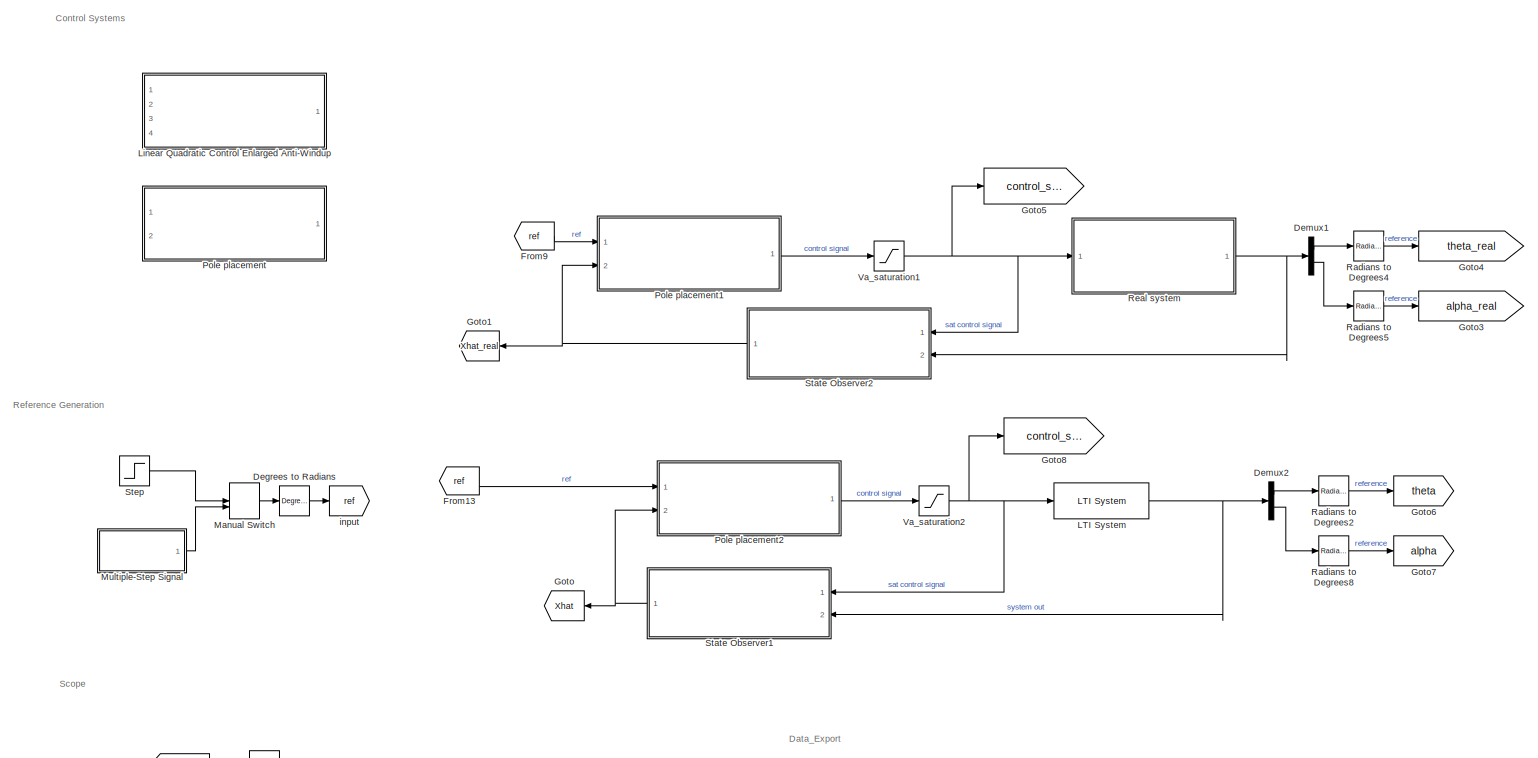
[diagram: root canvas - part 1/2, full width, middle band]
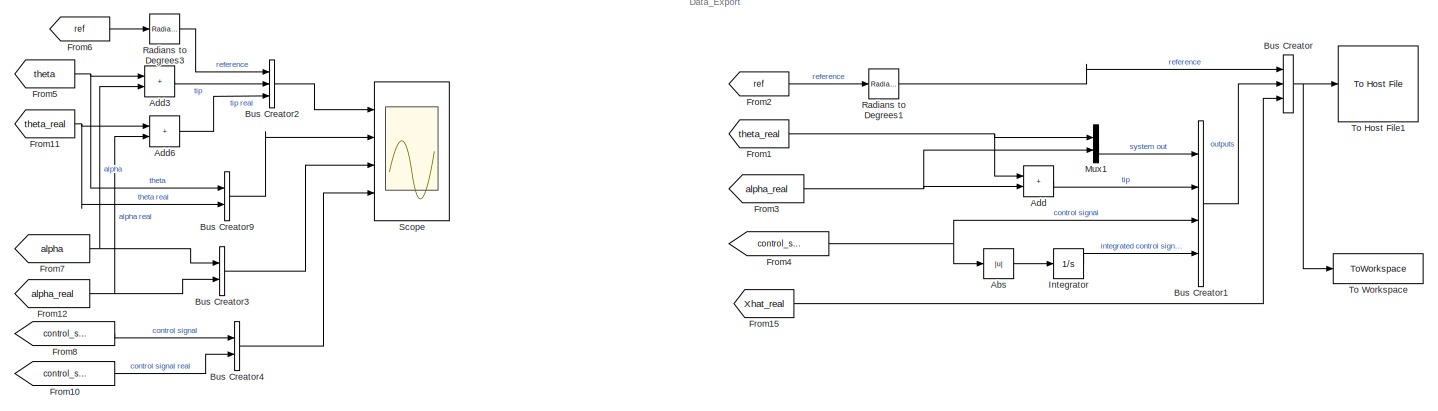
[diagram: root canvas - part 2/2, full width, bottom band]
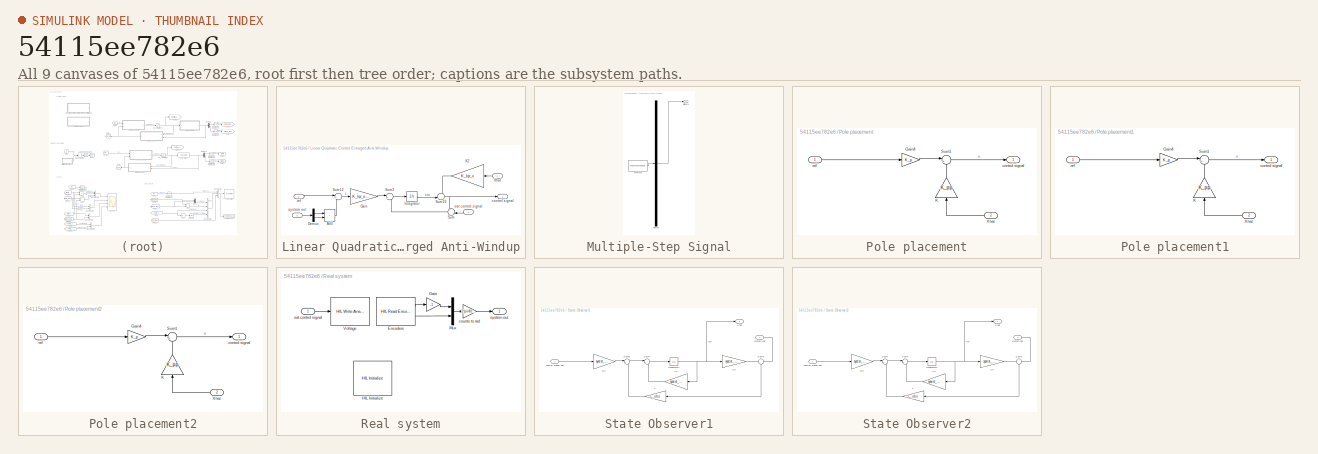
[diagram: thumbnail index - all 9 canvases of the model, root first then tree order]
MODEL slx_54115ee782e6
KIND model
CONFIG AbsTol = auto
CONFIG EnableMultiTasking = on
CONFIG FixedStep = 0.002
CONFIG MaxStep = auto
CONFIG MinStep = auto
CONFIG PostLoadFcn = qc_set_target_type(getConfigSet(bdroot, 'QUARC Default Target Configuration'));
CONFIG RelTol = 1e-3
CONFIG SampleTimeConstraint = Unconstrained
CONFIG Solver = FixedStepAuto
CONFIG SolverName = FixedStepAuto
CONFIG StartTime = 0.0
CONFIG StopTime = inf
BLOCK [Abs] Abs
  Commented = on
  SaturateOnIntegerOverflow = off
BLOCK [Sum] Add
  Commented = on
  IconShape = rectangular
  Ports = [2, 1]
BLOCK [Sum] Add3
  IconShape = rectangular
  Ports = [2, 1]
BLOCK [Sum] Add6
  IconShape = rectangular
  Ports = [2, 1]
BLOCK [BusCreator] Bus Creator
  Commented = on
  DisplayOption = bar
  InheritFromInputs = on
  Inputs = 3
  Ports = [3, 1]
BLOCK [BusCreator] Bus Creator1
  Commented = on
  DisplayOption = bar
  InheritFromInputs = on
  Inputs = 4
  Ports = [4, 1]
BLOCK [BusCreator] Bus Creator2
  DisplayOption = bar
  InheritFromInputs = on
  Inputs = 3
  Ports = [3, 1]
BLOCK [BusCreator] Bus Creator3
  DisplayOption = bar
  InheritFromInputs = on
  Inputs = 2
  Ports = [2, 1]
BLOCK [BusCreator] Bus Creator4
  DisplayOption = bar
  InheritFromInputs = on
  Inputs = 2
  Ports = [2, 1]
BLOCK [BusCreator] Bus Creator9
  DisplayOption = bar
  InheritFromInputs = on
  Inputs = 2
  Ports = [2, 1]
BLOCK [Reference] Degrees to Radians  REF=simulink_extras/Transformations/Degrees to
Radians
  Ports = [1, 1]
  SourceBlock = simulink_extras/Transformations/Degrees to\nRadians
  SourceType = DegreesToRadians
BLOCK [Demux] Demux1
  Commented = on
  Outputs = 2
  Ports = [1, 2]
BLOCK [Demux] Demux2
  Outputs = 2
  Ports = [1, 2]
BLOCK [From] From1
  Commented = on
  GotoTag = theta_real
BLOCK [From] From10
  GotoTag = control_signal_real
BLOCK [From] From11
  GotoTag = theta_real
BLOCK [From] From12
  GotoTag = alpha_real
BLOCK [From] From13
  GotoTag = ref
BLOCK [From] From15
  Commented = on
  GotoTag = Xhat_real
BLOCK [From] From2
  Commented = on
  GotoTag = ref
BLOCK [From] From3
  Commented = on
  GotoTag = alpha_real
BLOCK [From] From4
  Commented = on
  GotoTag = control_signal
BLOCK [From] From5
  GotoTag = theta
BLOCK [From] From6
  GotoTag = ref
BLOCK [From] From7
  GotoTag = alpha
BLOCK [From] From8
  GotoTag = control_signal
BLOCK [From] From9
  Commented = on
  GotoTag = ref
BLOCK [Goto] Goto
  GotoTag = Xhat
BLOCK [Goto] Goto1
  Commented = on
  GotoTag = Xhat_real
BLOCK [Goto] Goto3
  Commented = on
  GotoTag = alpha_real
BLOCK [Goto] Goto4
  Commented = on
  GotoTag = theta_real
BLOCK [Goto] Goto5
  Commented = on
  GotoTag = control_signal_real
BLOCK [Goto] Goto6
  GotoTag = theta
BLOCK [Goto] Goto7
  GotoTag = alpha
BLOCK [Goto] Goto8
  GotoTag = control_signal
BLOCK [Integrator] Integrator
  Commented = on
  Ports = [1, 1]
BLOCK [Reference] LTI System  REF=cstblocks/LTI System
  Ports = [1, 1]
  SourceBlock = cstblocks/LTI System
  SourceType = LTI Block
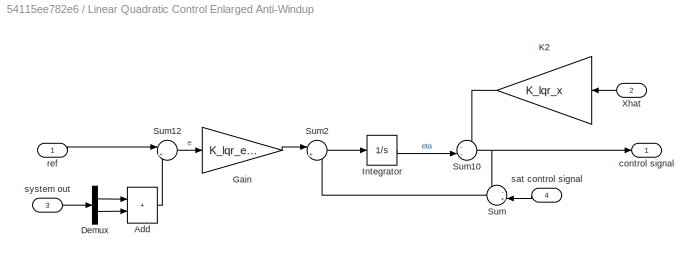
BLOCK [SubSystem] Linear Quadratic Control Enlarged Anti-Windup
  Commented = on
  Ports = [4, 1]
BLOCK [Outport] Linear Quadratic Control Enlarged Anti-Windup/ control signal
BLOCK [Sum] Linear Quadratic Control Enlarged Anti-Windup/Add
  IconShape = rectangular
  Ports = [2, 1]
BLOCK [Demux] Linear Quadratic Control Enlarged Anti-Windup/Demux
  Outputs = 2
  Ports = [1, 2]
BLOCK [Gain] Linear Quadratic Control Enlarged Anti-Windup/Gain
  Gain = K_lqr_eta
BLOCK [Integrator] Linear Quadratic Control Enlarged Anti-Windup/Integrator
  Ports = [1, 1]
BLOCK [Gain] Linear Quadratic Control Enlarged Anti-Windup/K2
  Gain = K_lqr_x
  Multiplication = Matrix(K*u)
BLOCK [Sum] Linear Quadratic Control Enlarged Anti-Windup/Sum
  Inputs = -+|
  Ports = [2, 1]
BLOCK [Sum] Linear Quadratic Control Enlarged Anti-Windup/Sum10
  Inputs = --|
  Ports = [2, 1]
BLOCK [Sum] Linear Quadratic Control Enlarged Anti-Windup/Sum12
  Inputs = |+-
  Ports = [2, 1]
BLOCK [Sum] Linear Quadratic Control Enlarged Anti-Windup/Sum2
  Inputs = |+-
  Ports = [2, 1]
BLOCK [Inport] Linear Quadratic Control Enlarged Anti-Windup/Xhat
  Port = 2
BLOCK [Inport] Linear Quadratic Control Enlarged Anti-Windup/ref
BLOCK [Inport] Linear Quadratic Control Enlarged Anti-Windup/sat  control signal
  Port = 4
BLOCK [Inport] Linear Quadratic Control Enlarged Anti-Windup/system out
  Port = 3
BLOCK [ManualSwitch] Manual Switch
BLOCK [SubSystem] Multiple-Step Signal
  ClipboardFcn = sigbuilder_block('clipboard');
  CloseFcn = sigbuilder_block('close');
  ContinueFcn = sigbuilder_block('continue');
  CopyFcn = sigbuilder_block('copy');
  DeleteFcn = sigbuilder_block('delete');
  LoadFcn = sigbuilder_block('load');
  MaskHideContents = on
  ModelCloseFcn = sigbuilder_block('modelClose');
  NameChangeFcn = sigbuilder_block('namechange');
  OpenFcn = sigbuilder_block('open',[437.6 199.2 550.4 400 ]);
  PauseFcn = sigbuilder_block('pause');
  Ports = [0, 1]
  PreSaveFcn = sigbuilder_block('preSave');
  StartFcn = sigbuilder_block('start');
  StopFcn = sigbuilder_block('stop');
  Tag = STV Subsys
BLOCK [Demux] Multiple-Step Signal/Demux
  DisplayOption = none
  Outputs = 1
  Ports = [1, 1]
  Tag = STV Demux
BLOCK [FromWorkspace] Multiple-Step Signal/FromWs
  Tag = STV FromWs
  VariableName = tuvar
BLOCK [Outport] Multiple-Step Signal/Signal 1
  Tag = STV Outport
BLOCK [Mux] Mux1
  Commented = on
  DisplayOption = bar
  Inputs = 2
  Ports = [2, 1]
BLOCK [SubSystem] Pole placement
  Commented = on
  Ports = [2, 1]
BLOCK [Outport] Pole placement/ control signal
BLOCK [Gain] Pole placement/Gain4
  Gain = K_p
BLOCK [Gain] Pole placement/K
  Gain = K_pp
  Multiplication = Matrix(K*u)
BLOCK [Sum] Pole placement/Sum1
  Inputs = |+-
  Ports = [2, 1]
BLOCK [Inport] Pole placement/Xhat
  Port = 2
BLOCK [Inport] Pole placement/ref
BLOCK [SubSystem] Pole placement1
  Commented = on
  Ports = [2, 1]
BLOCK [Outport] Pole placement1/ control signal
BLOCK [Gain] Pole placement1/Gain4
  Gain = K_p
BLOCK [Gain] Pole placement1/K
  Gain = K_pp
  Multiplication = Matrix(K*u)
BLOCK [Sum] Pole placement1/Sum1
  Inputs = |+-
  Ports = [2, 1]
BLOCK [Inport] Pole placement1/Xhat
  Port = 2
BLOCK [Inport] Pole placement1/ref
BLOCK [SubSystem] Pole placement2
  Ports = [2, 1]
BLOCK [Outport] Pole placement2/ control signal
BLOCK [Gain] Pole placement2/Gain4
  Gain = K_p
BLOCK [Gain] Pole placement2/K
  Gain = K_pp
  Multiplication = Matrix(K*u)
BLOCK [Sum] Pole placement2/Sum1
  Inputs = |+-
  Ports = [2, 1]
BLOCK [Inport] Pole placement2/Xhat
  Port = 2
BLOCK [Inport] Pole placement2/ref
BLOCK [Reference] Radians to Degrees1  REF=simulink_extras/Transformations/Radians
to Degrees
  Commented = on
  Ports = [1, 1]
  SourceBlock = simulink_extras/Transformations/Radians\nto Degrees
  SourceType = RadiansToDegrees
BLOCK [Reference] Radians to Degrees2  REF=simulink_extras/Transformations/Radians
to Degrees
  Ports = [1, 1]
  SourceBlock = simulink_extras/Transformations/Radians\nto Degrees
  SourceType = RadiansToDegrees
BLOCK [Reference] Radians to Degrees3  REF=simulink_extras/Transformations/Radians
to Degrees
  Ports = [1, 1]
  SourceBlock = simulink_extras/Transformations/Radians\nto Degrees
  SourceType = RadiansToDegrees
BLOCK [Reference] Radians to Degrees4  REF=simulink_extras/Transformations/Radians
to Degrees
  Commented = on
  Ports = [1, 1]
  SourceBlock = simulink_extras/Transformations/Radians\nto Degrees
  SourceType = RadiansToDegrees
BLOCK [Reference] Radians to Degrees5  REF=simulink_extras/Transformations/Radians
to Degrees
  Commented = on
  Ports = [1, 1]
  SourceBlock = simulink_extras/Transformations/Radians\nto Degrees
  SourceType = RadiansToDegrees
BLOCK [Reference] Radians to Degrees8  REF=simulink_extras/Transformations/Radians
to Degrees
  Ports = [1, 1]
  SourceBlock = simulink_extras/Transformations/Radians\nto Degrees
  SourceType = RadiansToDegrees
BLOCK [SubSystem] Real system
  Commented = on
  Ports = [1, 1]
BLOCK [Reference] Real system/Encoders  REF=quarc_library/Data Acquisition/Generic/Timebases/HIL Read Encoder
Timebase
  AttributesFormatString = (%<object_name>)
  Ports = [0, 2]
  SourceBlock = quarc_library/Data Acquisition/Generic/Timebases/HIL Read Encoder\nTimebase
  SourceType = HIL Read Encoder Timebase
  UserDataPersistent = on
BLOCK [Gain] Real system/Gain
  Gain = -1
BLOCK [Reference] Real system/HIL Initialize  REF=quarc_library/Data Acquisition/Generic/Configuration/HIL Initialize
  AttributesFormatString = %<object_name> (%<board_type>-%<board_number>)
  Commented = on
  Ports = []
  Priority = -99
  SourceBlock = quarc_library/Data Acquisition/Generic/Configuration/HIL Initialize
  SourceType = HIL Initialize
  UserDataPersistent = on
BLOCK [Mux] Real system/Mux
  DisplayOption = bar
  Inputs = 2
  Ports = [2, 1]
BLOCK [Reference] Real system/Voltage  REF=quarc_library/Data Acquisition/Generic/Immediate I//O/HIL Write Analog
  AttributesFormatString = (%<object_name>)
  Ports = [1]
  SourceBlock = quarc_library/Data Acquisition/Generic/Immediate I//O/HIL Write Analog
  SourceType = HIL Write Analog
  UserDataPersistent = on
BLOCK [Gain] Real system/counts to rad
  Gain = 2*pi/4096
BLOCK [Inport] Real system/sat control signal
BLOCK [Outport] Real system/system out
BLOCK [Scope] Scope
  Floating = off
  NumInputPorts = 4
  Ports = [4]
  ScopeSpecificationString = Simulink.scopes.TimeScopeBlockCfg('CurrentConfiguration', extmgr.ConfigurationSet(extmgr.Configuration('Core','General UI',true,'FigureColor',[1 1 1]),extmgr.Configuration('Core','Source UI',true),extmgr.Configuration('Sources','WiredSimulink',true),extmgr.Configuration('Visuals','Time Domain',true,'SerializedDisplays',{struct('MinYLimReal','-49.16219','MaxYLimReal','57.83647','YLabelReal','','Min...<+4512ch>
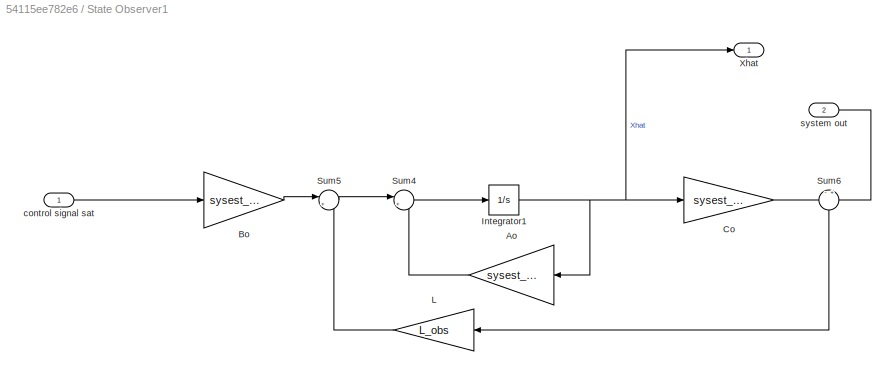
BLOCK [SubSystem] State Observer1
  Ports = [2, 1]
BLOCK [Gain] State Observer1/Ao
  Gain = sysest_ct.A
  Multiplication = Matrix(K*u)
BLOCK [Gain] State Observer1/Bo
  Gain = sysest_ct.B
  Multiplication = Matrix(K*u)
BLOCK [Gain] State Observer1/Co
  Gain = sysest_ct.C
  Multiplication = Matrix(K*u)
BLOCK [Integrator] State Observer1/Integrator1
  Ports = [1, 1]
BLOCK [Gain] State Observer1/L
  Gain = L_obs
  Multiplication = Matrix(K*u)
BLOCK [Sum] State Observer1/Sum4
  Inputs = |++
  Ports = [2, 1]
BLOCK [Sum] State Observer1/Sum5
  Inputs = |++
  Ports = [2, 1]
BLOCK [Sum] State Observer1/Sum6
  Inputs = -+
  Ports = [2, 1]
BLOCK [Outport] State Observer1/Xhat
BLOCK [Inport] State Observer1/control signal sat
BLOCK [Inport] State Observer1/system out
  Port = 2
BLOCK [SubSystem] State Observer2
  Commented = on
  Ports = [2, 1]
BLOCK [Gain] State Observer2/Ao
  Gain = sysest_ct.A
  Multiplication = Matrix(K*u)
BLOCK [Gain] State Observer2/Bo
  Gain = sysest_ct.B
  Multiplication = Matrix(K*u)
BLOCK [Gain] State Observer2/Co
  Gain = sysest_ct.C
  Multiplication = Matrix(K*u)
BLOCK [Integrator] State Observer2/Integrator1
  Ports = [1, 1]
BLOCK [Gain] State Observer2/L
  Gain = L_obs
  Multiplication = Matrix(K*u)
BLOCK [Sum] State Observer2/Sum4
  Inputs = |++
  Ports = [2, 1]
BLOCK [Sum] State Observer2/Sum5
  Inputs = |++
  Ports = [2, 1]
BLOCK [Sum] State Observer2/Sum6
  Inputs = -+
  Ports = [2, 1]
BLOCK [Outport] State Observer2/Xhat
BLOCK [Inport] State Observer2/control signal sat
BLOCK [Inport] State Observer2/system out
  Port = 2
BLOCK [Step] Step
  After = 45
  SampleTime = 0
BLOCK [Reference] To Host File1  REF=quarc_library/Sinks/To Host/To Host File
  AttributesFormatString = %<final_file_name>
  Commented = on
  Ports = [1]
  SourceBlock = quarc_library/Sinks/To Host/To Host File
  SourceType = To Host File
BLOCK [ToWorkspace] To Workspace
  Commented = on
  FixptAsFi = on
  MaxDataPoints = inf
  Ports = [1]
  SampleTime = -1
  SaveFormat = Timeseries
  VariableName = data
BLOCK [Saturate] Va_saturation1
  Commented = on
  LowerLimit = -v_a_max
  UpperLimit = v_a_max
BLOCK [Saturate] Va_saturation2
  LowerLimit = -v_a_max
  UpperLimit = v_a_max
BLOCK [Goto] input
  GotoTag = ref
ANNOTATION (root): Control Systems
ANNOTATION (root): Data_Export
ANNOTATION (root): Reference Generation
ANNOTATION (root): Scope
LINE Abs:1 -> Integrator:1
LINE Add3:1 -> Bus Creator2:2
LINE Add6:1 -> Bus Creator2:3
LINE Add:1 -> Bus Creator1:2
LINE Bus Creator1:1 -> Bus Creator:2
LINE Bus Creator2:1 -> Scope:1
LINE Bus Creator3:1 -> Scope:3
LINE Bus Creator4:1 -> Scope:4
LINE Bus Creator9:1 -> Scope:2
NET Bus Creator:1 -> To Host File1:1, To Workspace:1
LINE Degrees to Radians:1 -> input:1
LINE Demux1:1 -> Radians to Degrees4:1
LINE Demux1:2 -> Radians to Degrees5:1
LINE Demux2:1 -> Radians to Degrees2:1
LINE Demux2:2 -> Radians to Degrees8:1
LINE From10:1 -> Bus Creator4:2
NET From11:1 -> Add6:1, Bus Creator9:2
NET From12:1 -> Add6:2, Bus Creator3:2
LINE From13:1 -> Pole placement2:1
LINE From15:1 -> Bus Creator:3
NET From1:1 -> Add:1, Mux1:1
LINE From2:1 -> Radians to Degrees1:1
NET From3:1 -> Add:2, Mux1:2
NET From4:1 -> Abs:1, Bus Creator1:3
NET From5:1 -> Add3:1, Bus Creator9:1
LINE From6:1 -> Radians to Degrees3:1
NET From7:1 -> Add3:2, Bus Creator3:1
LINE From8:1 -> Bus Creator4:1
LINE From9:1 -> Pole placement1:1
LINE Integrator:1 -> Bus Creator1:4
NET LTI System:1 -> Demux2:1, State Observer1:2
LINE Linear Quadratic Control Enlarged Anti-Windup/Add:1 -> Linear Quadratic Control Enlarged Anti-Windup/Sum12:2
LINE Linear Quadratic Control Enlarged Anti-Windup/Demux:1 -> Linear Quadratic Control Enlarged Anti-Windup/Add:1
LINE Linear Quadratic Control Enlarged Anti-Windup/Demux:2 -> Linear Quadratic Control Enlarged Anti-Windup/Add:2
LINE Linear Quadratic Control Enlarged Anti-Windup/Gain:1 -> Linear Quadratic Control Enlarged Anti-Windup/Sum2:1
LINE Linear Quadratic Control Enlarged Anti-Windup/Integrator:1 -> Linear Quadratic Control Enlarged Anti-Windup/Sum10:2
LINE Linear Quadratic Control Enlarged Anti-Windup/K2:1 -> Linear Quadratic Control Enlarged Anti-Windup/Sum10:1
NET Linear Quadratic Control Enlarged Anti-Windup/Sum10:1 -> Linear Quadratic Control Enlarged Anti-Windup/ control signal:1, Linear Quadratic Control Enlarged Anti-Windup/Sum:1
LINE Linear Quadratic Control Enlarged Anti-Windup/Sum12:1 -> Linear Quadratic Control Enlarged Anti-Windup/Gain:1
LINE Linear Quadratic Control Enlarged Anti-Windup/Sum2:1 -> Linear Quadratic Control Enlarged Anti-Windup/Integrator:1
LINE Linear Quadratic Control Enlarged Anti-Windup/Sum:1 -> Linear Quadratic Control Enlarged Anti-Windup/Sum2:2
LINE Linear Quadratic Control Enlarged Anti-Windup/Xhat:1 -> Linear Quadratic Control Enlarged Anti-Windup/K2:1
LINE Linear Quadratic Control Enlarged Anti-Windup/ref:1 -> Linear Quadratic Control Enlarged Anti-Windup/Sum12:1
LINE Linear Quadratic Control Enlarged Anti-Windup/sat  control signal:1 -> Linear Quadratic Control Enlarged Anti-Windup/Sum:2
LINE Linear Quadratic Control Enlarged Anti-Windup/system out:1 -> Linear Quadratic Control Enlarged Anti-Windup/Demux:1
LINE Manual Switch:1 -> Degrees to Radians:1
LINE Multiple-Step Signal:1 -> Manual Switch:2
LINE Mux1:1 -> Bus Creator1:1
LINE Pole placement/Gain4:1 -> Pole placement/Sum1:1
LINE Pole placement/K:1 -> Pole placement/Sum1:2
LINE Pole placement/Sum1:1 -> Pole placement/ control signal:1
LINE Pole placement/Xhat:1 -> Pole placement/K:1
LINE Pole placement/ref:1 -> Pole placement/Gain4:1
LINE Pole placement1/Gain4:1 -> Pole placement1/Sum1:1
LINE Pole placement1/K:1 -> Pole placement1/Sum1:2
LINE Pole placement1/Sum1:1 -> Pole placement1/ control signal:1
LINE Pole placement1/Xhat:1 -> Pole placement1/K:1
LINE Pole placement1/ref:1 -> Pole placement1/Gain4:1
LINE Pole placement1:1 -> Va_saturation1:1
LINE Pole placement2/Gain4:1 -> Pole placement2/Sum1:1
LINE Pole placement2/K:1 -> Pole placement2/Sum1:2
LINE Pole placement2/Sum1:1 -> Pole placement2/ control signal:1
LINE Pole placement2/Xhat:1 -> Pole placement2/K:1
LINE Pole placement2/ref:1 -> Pole placement2/Gain4:1
LINE Pole placement2:1 -> Va_saturation2:1
LINE Radians to Degrees1:1 -> Bus Creator:1
LINE Radians to Degrees2:1 -> Goto6:1
LINE Radians to Degrees3:1 -> Bus Creator2:1
LINE Radians to Degrees4:1 -> Goto4:1
LINE Radians to Degrees5:1 -> Goto3:1
LINE Radians to Degrees8:1 -> Goto7:1
LINE Real system/Encoders:1 -> Real system/Gain:1
LINE Real system/Encoders:2 -> Real system/Mux:2
LINE Real system/Gain:1 -> Real system/Mux:1
LINE Real system/Mux:1 -> Real system/counts to rad:1
LINE Real system/counts to rad:1 -> Real system/system out:1
LINE Real system/sat control signal:1 -> Real system/Voltage:1
NET Real system:1 -> Demux1:1, State Observer2:2
LINE State Observer1/Ao:1 -> State Observer1/Sum4:2
LINE State Observer1/Bo:1 -> State Observer1/Sum5:1
LINE State Observer1/Co:1 -> State Observer1/Sum6:1
NET State Observer1/Integrator1:1 -> State Observer1/Ao:1, State Observer1/Co:1, State Observer1/Xhat:1
LINE State Observer1/L:1 -> State Observer1/Sum5:2
LINE State Observer1/Sum4:1 -> State Observer1/Integrator1:1
LINE State Observer1/Sum5:1 -> State Observer1/Sum4:1
LINE State Observer1/Sum6:1 -> State Observer1/L:1
LINE State Observer1/control signal sat:1 -> State Observer1/Bo:1
LINE State Observer1/system out:1 -> State Observer1/Sum6:2
NET State Observer1:1 -> Goto:1, Pole placement2:2
LINE State Observer2/Ao:1 -> State Observer2/Sum4:2
LINE State Observer2/Bo:1 -> State Observer2/Sum5:1
LINE State Observer2/Co:1 -> State Observer2/Sum6:1
NET State Observer2/Integrator1:1 -> State Observer2/Ao:1, State Observer2/Co:1, State Observer2/Xhat:1
LINE State Observer2/L:1 -> State Observer2/Sum5:2
LINE State Observer2/Sum4:1 -> State Observer2/Integrator1:1
LINE State Observer2/Sum5:1 -> State Observer2/Sum4:1
LINE State Observer2/Sum6:1 -> State Observer2/L:1
LINE State Observer2/control signal sat:1 -> State Observer2/Bo:1
LINE State Observer2/system out:1 -> State Observer2/Sum6:2
NET State Observer2:1 -> Goto1:1, Pole placement1:2
LINE Step:1 -> Manual Switch:1
NET Va_saturation1:1 -> Goto5:1, Real system:1, State Observer2:1
NET Va_saturation2:1 -> Goto8:1, LTI System:1, State Observer1:1
note: NET lines group one-source signal fan-out (src -> all destinations, sorted); 1:1 wires keep LINE
